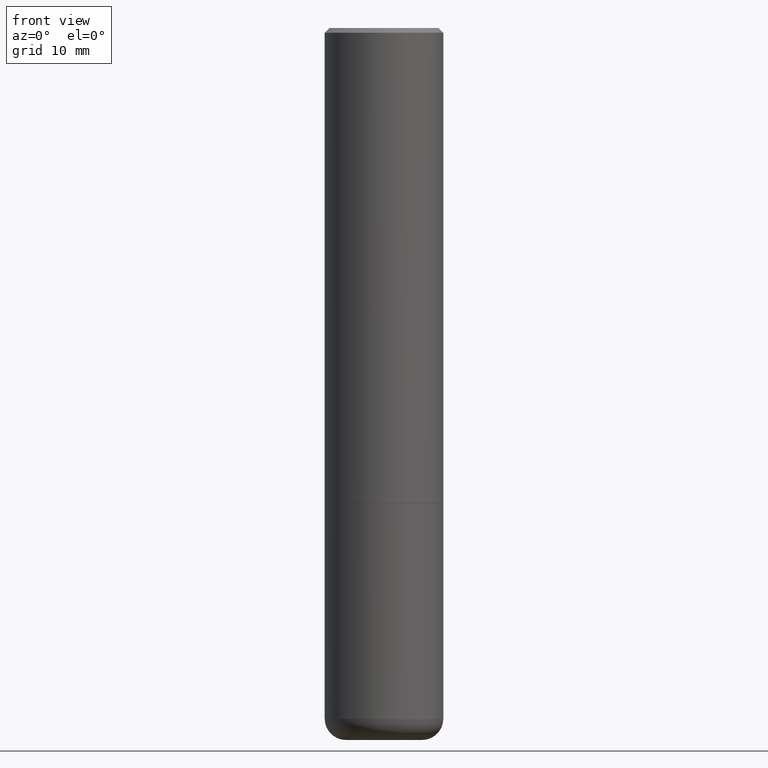
[diagram: clean part render]
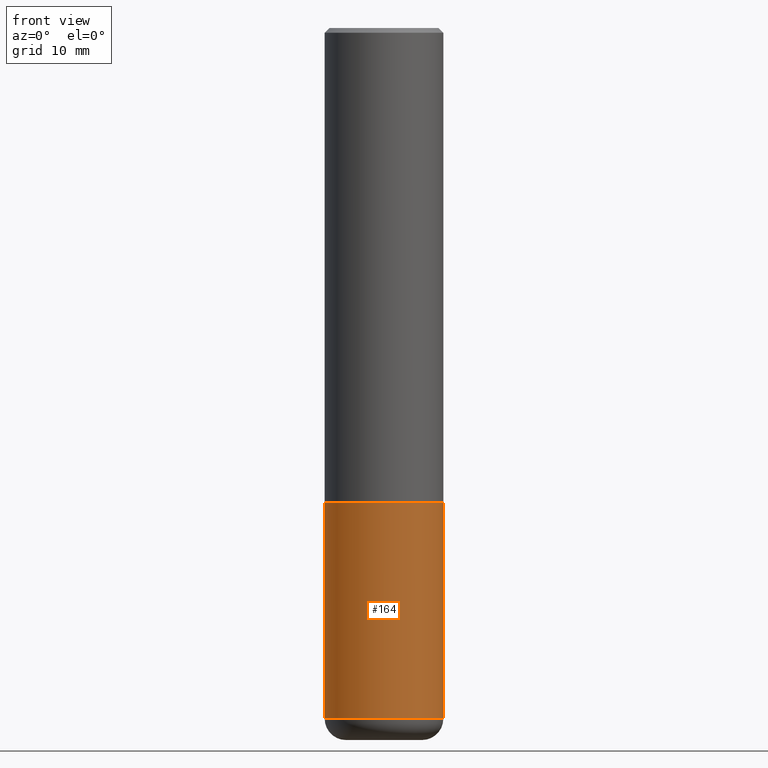
[diagram: same view with one face highlighted and labeled with its STEP entity id]
A machine part, front view. The second image highlights one B-rep face of the part: STEP entity #164.
In plain terms, the highlighted cylindrical surface (partial cylindrical patch) has radius 6.35 mm, axis along (-0, 0, 1).
Its self-contained STEP definition (entity closure, byte-faithful):
#28 = FACE_OUTER_BOUND ( 'NONE', #59, .T. ) ;
#29 = ORIENTED_EDGE ( 'NONE', *, *, #261, .F. ) ;
#48 = VERTEX_POINT ( 'NONE', #343 ) ;
#59 = EDGE_LOOP ( 'NONE', ( #29, #313, #345, #375 ) ) ;
#62 = EDGE_CURVE ( 'NONE', #302, #48, #95, .T. ) ;
#75 = CARTESIAN_POINT ( 'NONE',  ( 7.116314225998749245E-29, -1.016021069603355467E-14, -2.910000000000000586 ) ) ;
#92 = DIRECTION ( 'NONE',  ( 1.000000000000000000, -6.982962677686266711E-15, 0.000000000000000000 ) ) ;
#95 = CIRCLE ( 'NONE', #384, 0.2500000000000000000 ) ;
#104 = LINE ( 'NONE', #231, #279 ) ;
#116 = DIRECTION ( 'NONE',  ( 1.000000000000000000, -6.982962677686266711E-15, 4.876176775795935793E-29 ) ) ;
#129 = EDGE_CURVE ( 'NONE', #216, #48, #390, .T. ) ;
#130 = DIRECTION ( 'NONE',  ( 1.000000000000000000, -6.982962677686270655E-15, 0.000000000000000000 ) ) ;
#144 = CARTESIAN_POINT ( 'NONE',  ( 0.2500000000000000000, -1.745740669421566678E-15, 1.219044193948983948E-29 ) ) ;
#164 = ADVANCED_FACE ( 'NONE', ( #28 ), #319, .T. ) ;
#166 = AXIS2_PLACEMENT_3D ( 'NONE', #282, #414, #116 ) ;
#173 = CARTESIAN_POINT ( 'NONE',  ( 0.2499999999999998335, -1.190595136545512292E-14, -2.910000000000000586 ) ) ;
#186 = AXIS2_PLACEMENT_3D ( 'NONE', #75, #344, #130 ) ;
#199 = DIRECTION ( 'NONE',  ( -2.445468806185136877E-29, 3.491481338843145188E-15, 1.000000000000000000 ) ) ;
#216 = VERTEX_POINT ( 'NONE', #173 ) ;
#231 = CARTESIAN_POINT ( 'NONE',  ( -0.2500000000000000000, 1.776356839400250465E-15, -1.229733772563726445E-29 ) ) ;
#243 = VECTOR ( 'NONE', #411, 39.37007874015748143 ) ;
#257 = EDGE_CURVE ( 'NONE', #280, #216, #336, .T. ) ;
#261 = EDGE_CURVE ( 'NONE', #280, #302, #104, .T. ) ;
#279 = VECTOR ( 'NONE', #199, 39.37007874015748143 ) ;
#280 = VERTEX_POINT ( 'NONE', #403 ) ;
#282 = CARTESIAN_POINT ( 'NONE',  ( 0.000000000000000000, 0.000000000000000000, 0.000000000000000000 ) ) ;
#284 = CARTESIAN_POINT ( 'NONE',  ( 4.890937612370273754E-29, -6.982962677686291954E-15, -2.000000000000000444 ) ) ;
#302 = VERTEX_POINT ( 'NONE', #398 ) ;
#313 = ORIENTED_EDGE ( 'NONE', *, *, #257, .T. ) ;
#319 = CYLINDRICAL_SURFACE ( 'NONE', #166, 0.2500000000000000000 ) ;
#336 = CIRCLE ( 'NONE', #186, 0.2500000000000000000 ) ;
#343 = CARTESIAN_POINT ( 'NONE',  ( 0.2500000000000000000, -8.728703347107858632E-15, -2.000000000000000444 ) ) ;
#344 = DIRECTION ( 'NONE',  ( -2.445468806185136597E-29, 3.491481338843145583E-15, 1.000000000000000000 ) ) ;
#345 = ORIENTED_EDGE ( 'NONE', *, *, #129, .T. ) ;
#375 = ORIENTED_EDGE ( 'NONE', *, *, #62, .F. ) ;
#384 = AXIS2_PLACEMENT_3D ( 'NONE', #284, #392, #92 ) ;
#390 = LINE ( 'NONE', #144, #243 ) ;
#392 = DIRECTION ( 'NONE',  ( -2.445468806185136597E-29, 3.491481338843145583E-15, 1.000000000000000000 ) ) ;
#398 = CARTESIAN_POINT ( 'NONE',  ( -0.2500000000000000000, -6.795229847459672846E-15, -2.000000000000000444 ) ) ;
#403 = CARTESIAN_POINT ( 'NONE',  ( -0.2499999999999998335, -8.383853856633305780E-15, -2.910000000000000586 ) ) ;
#411 = DIRECTION ( 'NONE',  ( -2.445468806185136877E-29, 3.491481338843145188E-15, 1.000000000000000000 ) ) ;
#414 = DIRECTION ( 'NONE',  ( -2.445468806185136597E-29, 3.491481338843145583E-15, 1.000000000000000000 ) ) ;